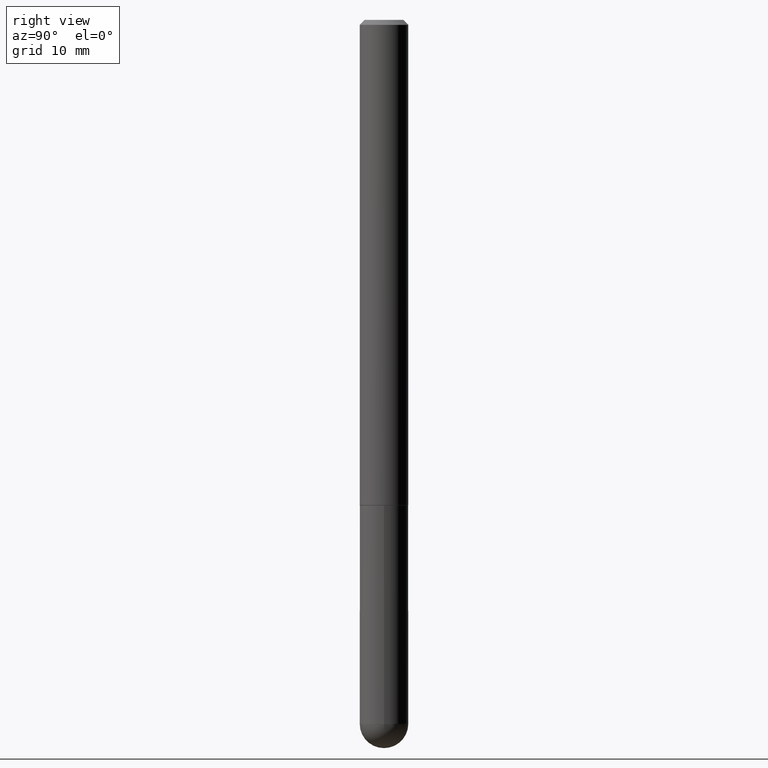
[diagram: clean part render]
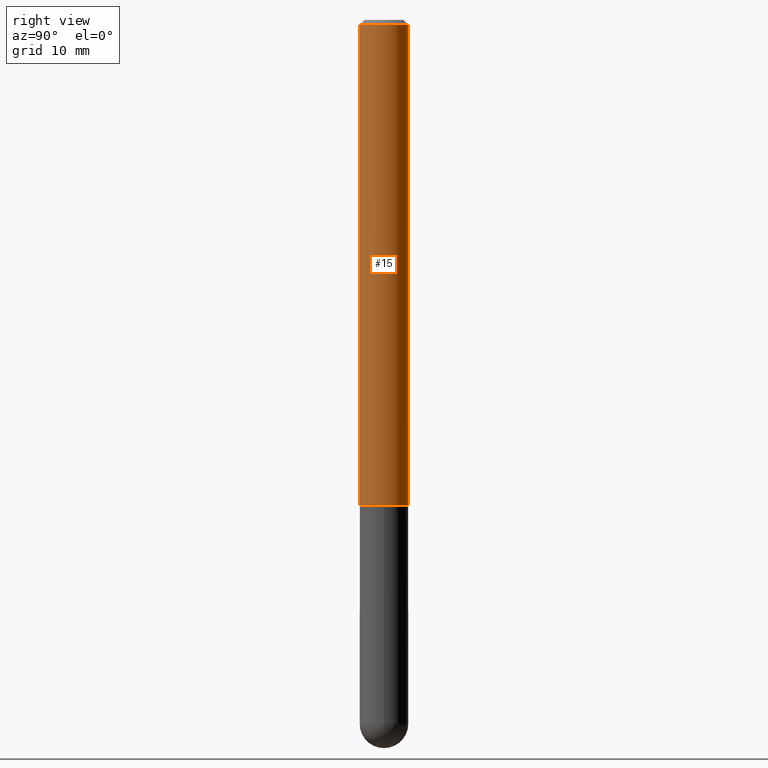
[diagram: same view with one face highlighted and labeled with its STEP entity id]
A machine part, right view. The second image highlights one B-rep face of the part: STEP entity #15.
In plain terms, the highlighted cylindrical surface (edge-blend (fillet) strip) has radius 2.5006 mm, axis along (-0, 0, 1).
Its self-contained STEP definition (entity closure, byte-faithful):
#7 = EDGE_CURVE ( 'NONE', #299, #39, #358, .T. ) ;
#13 = DIRECTION ( 'NONE',  ( -6.982962677686265922E-15, -1.000000000000000000, 3.481260124123204048E-15 ) ) ;
#15 = ADVANCED_FACE ( 'NONE', ( #163 ), #61, .T. ) ;
#39 = VERTEX_POINT ( 'NONE', #356 ) ;
#48 = ORIENTED_EDGE ( 'NONE', *, *, #146, .T. ) ;
#50 = VECTOR ( 'NONE', #165, 39.37007874015748143 ) ;
#61 = CYLINDRICAL_SURFACE ( 'NONE', #98, 0.09845000000000009299 ) ;
#69 = CARTESIAN_POINT ( 'NONE',  ( 6.995293233558191951E-16, 0.09845000000000009299, -3.427300592199297553E-16 ) ) ;
#89 = DIRECTION ( 'NONE',  ( -2.452606242276133797E-29, 3.481260124123203654E-15, 1.000000000000000000 ) ) ;
#98 = AXIS2_PLACEMENT_3D ( 'NONE', #396, #259, #13 ) ;
#100 = EDGE_CURVE ( 'NONE', #230, #39, #144, .T. ) ;
#110 = CARTESIAN_POINT ( 'NONE',  ( 4.905212484552273515E-31, -6.962520248246416231E-17, -0.02000000000000002470 ) ) ;
#139 = ORIENTED_EDGE ( 'NONE', *, *, #228, .F. ) ;
#144 = CIRCLE ( 'NONE', #210, 0.09844999999999998197 ) ;
#146 = EDGE_CURVE ( 'NONE', #310, #299, #213, .T. ) ;
#163 = FACE_OUTER_BOUND ( 'NONE', #365, .T. ) ;
#165 = DIRECTION ( 'NONE',  ( -2.452606242276134078E-29, 3.481260124123204048E-15, 1.000000000000000000 ) ) ;
#167 = CARTESIAN_POINT ( 'NONE',  ( -6.874726756181661159E-16, -0.09845000000000705964, -1.967499999999999361 ) ) ;
#187 = CARTESIAN_POINT ( 'NONE',  ( 4.825502781678292621E-29, -6.849379294212400691E-15, -1.967499999999999805 ) ) ;
#198 = DIRECTION ( 'NONE',  ( -2.452606242276133797E-29, 3.481260124123203654E-15, 1.000000000000000000 ) ) ;
#204 = VECTOR ( 'NONE', #347, 39.37007874015748143 ) ;
#207 = ORIENTED_EDGE ( 'NONE', *, *, #100, .F. ) ;
#210 = AXIS2_PLACEMENT_3D ( 'NONE', #110, #198, #411 ) ;
#213 = CIRCLE ( 'NONE', #253, 0.09845000000000021789 ) ;
#215 = DIRECTION ( 'NONE',  ( -6.982962677686265922E-15, -1.000000000000000000, 2.774858297271972854E-15 ) ) ;
#228 = EDGE_CURVE ( 'NONE', #310, #230, #282, .T. ) ;
#230 = VERTEX_POINT ( 'NONE', #312 ) ;
#253 = AXIS2_PLACEMENT_3D ( 'NONE', #187, #89, #215 ) ;
#257 = ORIENTED_EDGE ( 'NONE', *, *, #7, .T. ) ;
#259 = DIRECTION ( 'NONE',  ( -2.452606242276133797E-29, 3.481260124123203654E-15, 1.000000000000000000 ) ) ;
#279 = CARTESIAN_POINT ( 'NONE',  ( -6.874726756182135461E-16, -0.09845000000000009299, 3.427300592199297553E-16 ) ) ;
#282 = LINE ( 'NONE', #279, #204 ) ;
#299 = VERTEX_POINT ( 'NONE', #355 ) ;
#310 = VERTEX_POINT ( 'NONE', #167 ) ;
#312 = CARTESIAN_POINT ( 'NONE',  ( -6.754160278806065167E-16, -0.09845000000000005136, -0.01999999999999968470 ) ) ;
#347 = DIRECTION ( 'NONE',  ( -2.452606242276134078E-29, 3.481260124123204048E-15, 1.000000000000000000 ) ) ;
#355 = CARTESIAN_POINT ( 'NONE',  ( 6.995293233558439456E-16, 0.09844999999999337614, -1.967500000000000027 ) ) ;
#356 = CARTESIAN_POINT ( 'NONE',  ( 6.874726756182131517E-16, 0.09844999999999991258, -0.02000000000000036818 ) ) ;
#358 = LINE ( 'NONE', #69, #50 ) ;
#365 = EDGE_LOOP ( 'NONE', ( #48, #257, #207, #139 ) ) ;
#396 = CARTESIAN_POINT ( 'NONE',  ( 0.000000000000000000, 0.000000000000000000, 0.000000000000000000 ) ) ;
#411 = DIRECTION ( 'NONE',  ( -6.982962677686265133E-15, -1.000000000000000000, 3.468572871589974153E-15 ) ) ;